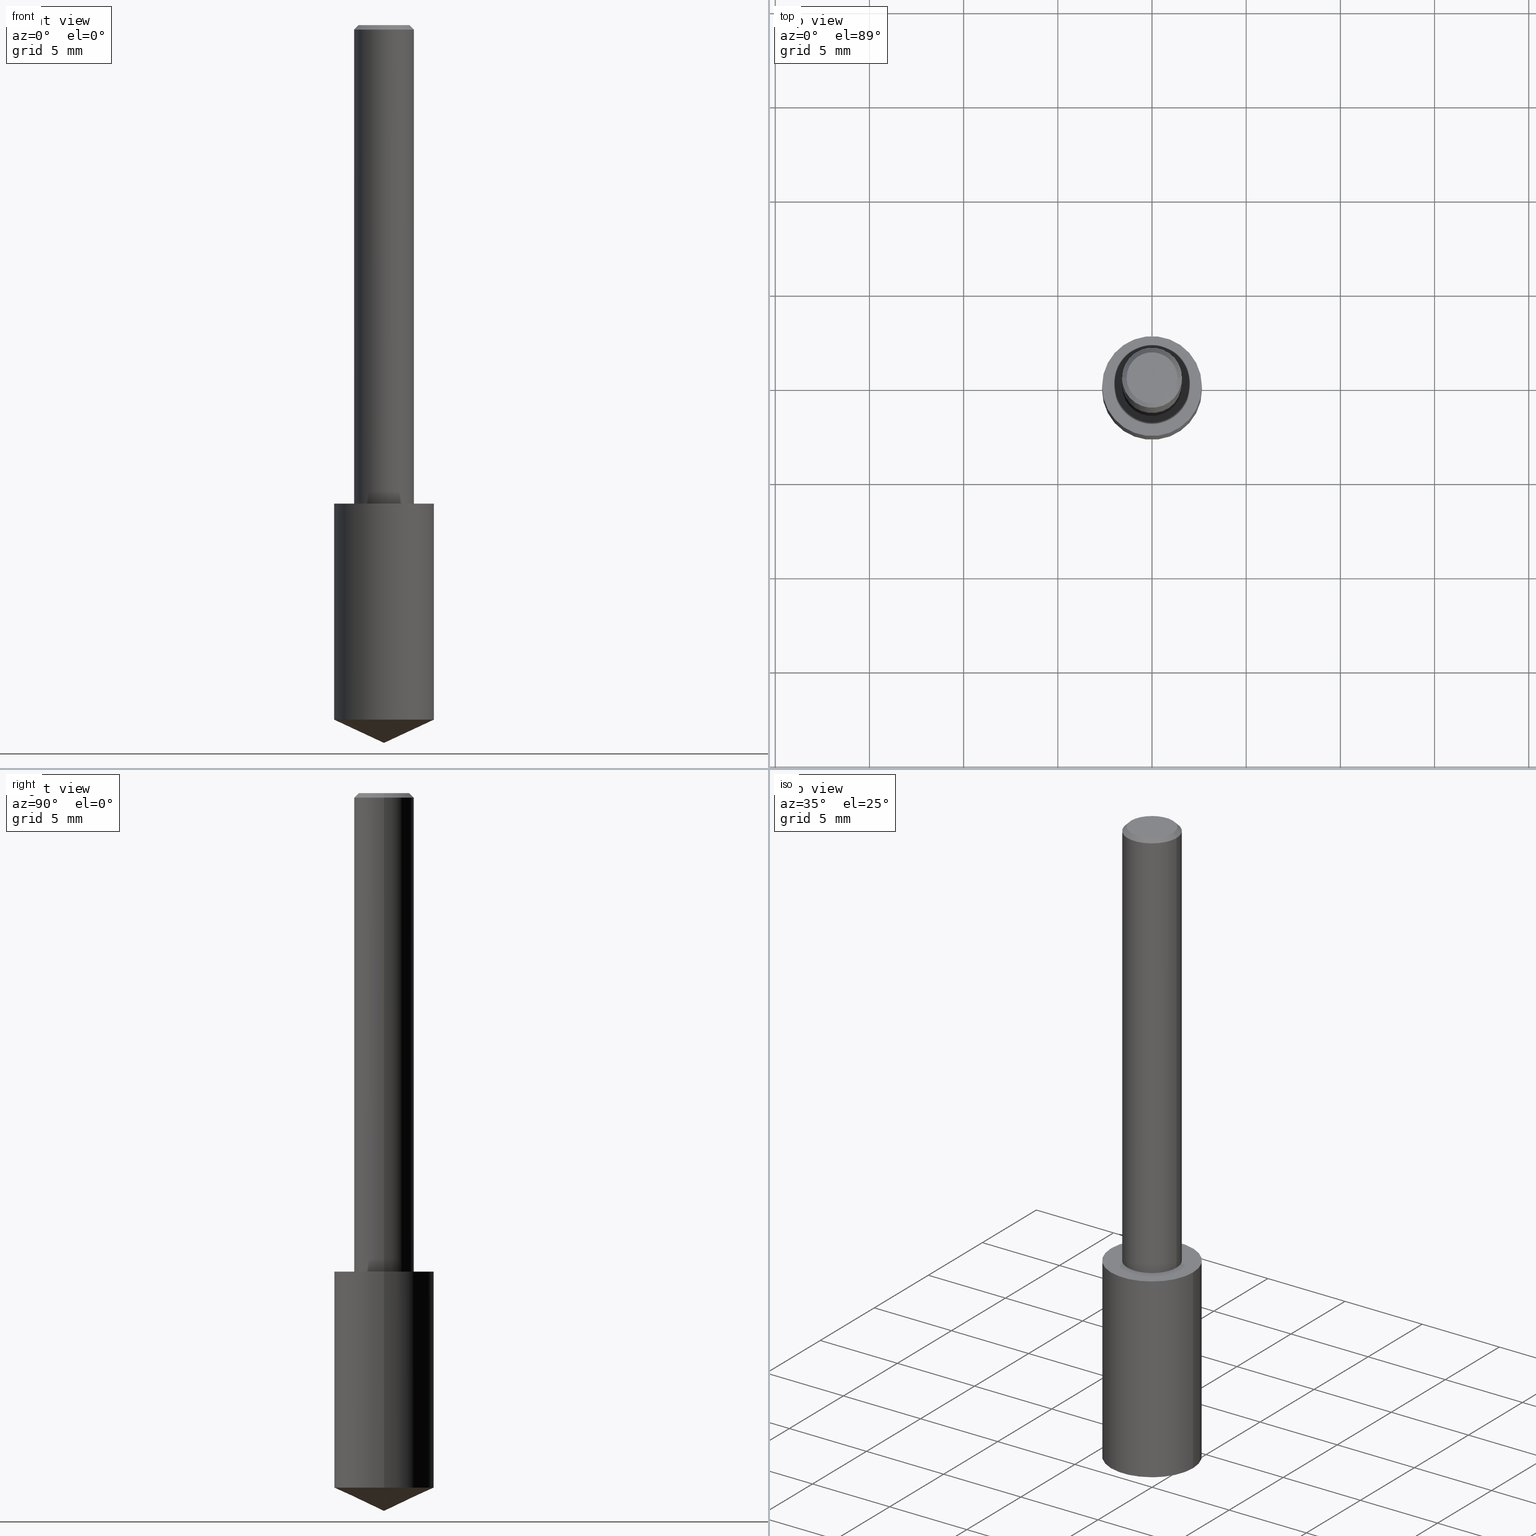
[diagram: canonical four-view strip — front | top / right | iso, engineering-drawing reading convention]
A machine part, canonical four-view strip (front | top / right | iso — engineering-drawing reading convention). The complete STEP part file that produces these views, byte-faithful:
ISO-10303-21;
HEADER;
FILE_DESCRIPTION (( 'STEP AP203' ),
    '1' );
FILE_NAME ('06142.STEP',
    '2024-04-30T18:31:00',
    ( '' ),
    ( '' ),
    'SwSTEP 2.0',
    'SolidWorks 2023',
    '' );
FILE_SCHEMA (( 'CONFIG_CONTROL_DESIGN' ));
ENDSEC;

DATA;
#1 = FACE_OUTER_BOUND ( 'NONE', #270, .T. ) ;
#2 = VECTOR ( 'NONE', #150, 39.37007874015748143 ) ;
#3 = EDGE_CURVE ( 'NONE', #208, #91, #68, .T. ) ;
#4 = DIRECTION ( 'NONE',  ( -2.445468806185136597E-29, 3.491481338843145583E-15, 1.000000000000000000 ) ) ;
#5 = APPROVAL_STATUS ( 'not_yet_approved' ) ;
#6 = FACE_OUTER_BOUND ( 'NONE', #146, .T. ) ;
#7 = DATE_AND_TIME ( #279, #269 ) ;
#8 = AXIS2_PLACEMENT_3D ( 'NONE', #215, #232, #30 ) ;
#9 = APPROVAL_STATUS ( 'not_yet_approved' ) ;
#10 = PLANE ( 'NONE',  #207 ) ;
#11 = ADVANCED_FACE ( 'NONE', ( #182 ), #265, .T. ) ;
#12 = VERTEX_POINT ( 'NONE', #180 ) ;
#13 = ORIENTED_EDGE ( 'NONE', *, *, #123, .T. ) ;
#14 = CC_DESIGN_DATE_AND_TIME_ASSIGNMENT ( #273, #329, ( #220 ) ) ;
#15 = EDGE_LOOP ( 'NONE', ( #48, #65, #324 ) ) ;
#16 = AXIS2_PLACEMENT_3D ( 'NONE', #54, #187, #290 ) ;
#17 = CARTESIAN_POINT ( 'NONE',  ( 3.549208643447727704E-29, -5.067329305087193163E-15, -1.451340795871526312 ) ) ;
#18 = APPROVAL_PERSON_ORGANIZATION ( #246, #297, #218 ) ;
#19 = DIRECTION ( 'NONE',  ( -2.445468806185136597E-29, 3.491481338843145583E-15, 1.000000000000000000 ) ) ;
#20 = DIRECTION ( 'NONE',  ( 1.000000000000000000, -6.982962677686266711E-15, 4.876176628004948512E-29 ) ) ;
#21 = PERSON_AND_ORGANIZATION ( #174, #107 ) ;
#22 = LINE ( 'NONE', #283, #242 ) ;
#23 = DATE_TIME_ROLE ( 'creation_date' ) ;
#24 = AXIS2_PLACEMENT_3D ( 'NONE', #172, #228, #335 ) ;
#25 = LINE ( 'NONE', #287, #155 ) ;
#26 = CC_DESIGN_PERSON_AND_ORGANIZATION_ASSIGNMENT ( #117, #252, ( #43 ) ) ;
#27 = DIMENSIONAL_EXPONENTS ( 1.000000000000000000, 0.000000000000000000, 0.000000000000000000, 0.000000000000000000, 0.000000000000000000, 0.000000000000000000, 0.000000000000000000 ) ;
#28 = VECTOR ( 'NONE', #203, 39.37007874015748143 ) ;
#29 = LINE ( 'NONE', #340, #94 ) ;
#30 = DIRECTION ( 'NONE',  ( 1.000000000000000000, -6.982962677686266711E-15, 4.876176628004948512E-29 ) ) ;
#31 = MANIFOLD_SOLID_BREP ( 'Body-Move/Copy2[2]', #171 ) ;
#32 = DIRECTION ( 'NONE',  ( 1.000000000000000000, -6.982962677686268288E-15, 0.000000000000000000 ) ) ;
#33 = APPROVAL_STATUS ( 'not_yet_approved' ) ;
#34 = COORDINATED_UNIVERSAL_TIME_OFFSET ( 5, 0, .BEHIND. ) ;
#35 = VERTEX_POINT ( 'NONE', #311 ) ;
#36 = CIRCLE ( 'NONE', #185, 0.06250000000000012490 ) ;
#37 = APPROVAL_PERSON_ORGANIZATION ( #21, #200, #284 ) ;
#38 = EDGE_LOOP ( 'NONE', ( #225, #97 ) ) ;
#39 = CARTESIAN_POINT ( 'NONE',  ( 3.359526907808025227E-29, -2.182498112362904859E-15, -1.000000000000000222 ) ) ;
#40 = EDGE_CURVE ( 'NONE', #66, #208, #22, .T. ) ;
#41 = ORIENTED_EDGE ( 'NONE', *, *, #67, .T. ) ;
#42 = VECTOR ( 'NONE', #307, 39.37007874015748854 ) ;
#43 = PRODUCT_DEFINITION ( 'UNKNOWN', '', #47, #243 ) ;
#44 = DIRECTION ( 'NONE',  ( -2.445468806185136597E-29, 3.491481338843145583E-15, 1.000000000000000000 ) ) ;
#45 = LINE ( 'NONE', #101, #42 ) ;
#46 = MECHANICAL_CONTEXT ( 'NONE', #75, 'mechanical' ) ;
#47 = PRODUCT_DEFINITION_FORMATION_WITH_SPECIFIED_SOURCE ( 'ANY', '', #74, .NOT_KNOWN. ) ;
#48 = ORIENTED_EDGE ( 'NONE', *, *, #50, .F. ) ;
#49 = COORDINATED_UNIVERSAL_TIME_OFFSET ( 5, 0, .BEHIND. ) ;
#50 = EDGE_CURVE ( 'NONE', #250, #333, #45, .T. ) ;
#51 = DIRECTION ( 'NONE',  ( 0.7071067811865452413, -7.319954787623248157E-15, -0.7071067811865497932 ) ) ;
#52 = DIRECTION ( 'NONE',  ( -1.000000000000000000, 6.982962677686265922E-15, -4.876176775795935793E-29 ) ) ;
#53 = DIRECTION ( 'NONE',  ( -2.445468806185136597E-29, 3.491481338843145583E-15, 1.000000000000000000 ) ) ;
#54 = CARTESIAN_POINT ( 'NONE',  ( -9.261009624683002666E-28, 1.322226732217803884E-13, 37.87007874015748143 ) ) ;
#55 = CARTESIAN_POINT ( 'NONE',  ( 2.445468806185136877E-29, -3.491481338843145977E-15, -1.000000000000000222 ) ) ;
#56 = DIRECTION ( 'NONE',  ( 1.000000000000000000, -6.982962677686264344E-15, 0.000000000000000000 ) ) ;
#57 = PERSON_AND_ORGANIZATION_ROLE ( 'design_supplier' ) ;
#58 = FACE_OUTER_BOUND ( 'NONE', #38, .T. ) ;
#59 = DIRECTION ( 'NONE',  ( 2.445468806185136597E-29, -3.491481338843145583E-15, -1.000000000000000000 ) ) ;
#60 = SECURITY_CLASSIFICATION_LEVEL ( 'unclassified' ) ;
#61 = ORIENTED_EDGE ( 'NONE', *, *, #314, .T. ) ;
#62 = AXIS2_PLACEMENT_3D ( 'NONE', #152, #205, #334 ) ;
#63 = ORIENTED_EDGE ( 'NONE', *, *, #93, .F. ) ;
#64 = EDGE_CURVE ( 'NONE', #333, #35, #258, .T. ) ;
#65 = ORIENTED_EDGE ( 'NONE', *, *, #158, .T. ) ;
#66 = VERTEX_POINT ( 'NONE', #105 ) ;
#67 = EDGE_CURVE ( 'NONE', #248, #91, #277, .T. ) ;
#68 = CIRCLE ( 'NONE', #62, 0.06250000000000000000 ) ;
#69 = CARTESIAN_POINT ( 'NONE',  ( 0.1043499999999999844, -4.220153494259708388E-15, -1.000000000000000222 ) ) ;
#70 = AXIS2_PLACEMENT_3D ( 'NONE', #39, #137, #52 ) ;
#71 = VERTEX_POINT ( 'NONE', #69 ) ;
#72 = CARTESIAN_POINT ( 'NONE',  ( -0.06250000000000006939, 4.440892098500631092E-16, -3.074334431409319267E-30 ) ) ;
#73 = FACE_OUTER_BOUND ( 'NONE', #199, .T. ) ;
#74 = PRODUCT ( '06142', '06142', '', ( #46 ) ) ;
#75 = APPLICATION_CONTEXT ( 'configuration controlled 3d designs of mechanical parts and assemblies' ) ;
#76 = CARTESIAN_POINT ( 'NONE',  ( -7.487088864773345706E-50, 1.068957861474247695E-35, 3.061616997868395197E-21 ) ) ;
#77 = CONICAL_SURFACE ( 'NONE', #16, 84.42940631927456252, 1.134464013796316895 ) ;
#78 = APPLICATION_PROTOCOL_DEFINITION ( 'international standard', 'config_control_design', 1994, #75 ) ;
#79 = FACE_OUTER_BOUND ( 'NONE', #194, .T. ) ;
#80 = PERSON_AND_ORGANIZATION ( #174, #107 ) ;
#81 = CC_DESIGN_PERSON_AND_ORGANIZATION_ASSIGNMENT ( #168, #138, ( #220 ) ) ;
#82 = CARTESIAN_POINT ( 'NONE',  ( 0.06250000000000000000, -4.691678049070464390E-16, -0.009375000000000063838 ) ) ;
#83 = AXIS2_PLACEMENT_3D ( 'NONE', #236, #53, #239 ) ;
#84 = LOCAL_TIME ( 14, 31, 0.000000000000000000, #49 ) ;
#85 = DIRECTION ( 'NONE',  ( -2.445468806185136597E-29, 3.491481338843145583E-15, 1.000000000000000000 ) ) ;
#86 = DIRECTION ( 'NONE',  ( -0.9063077870366510469, 7.915267918739014631E-15, 0.4226182617406970543 ) ) ;
#87 = CARTESIAN_POINT ( 'NONE',  ( 2.292627005798581499E-31, -3.273263755165471417E-17, -0.009375000000000063838 ) ) ;
#88 = DIRECTION ( 'NONE',  ( -2.445468806185136597E-29, 3.491481338843145583E-15, 1.000000000000000000 ) ) ;
#89 = DIRECTION ( 'NONE',  ( 0.000000000000000000, 0.000000000000000000, 1.000000000000000000 ) ) ;
#90 = APPLICATION_CONTEXT ( 'configuration controlled 3d designs of mechanical parts and assemblies' ) ;
#91 = VERTEX_POINT ( 'NONE', #125 ) ;
#92 = CALENDAR_DATE ( 2024, 30, 4 ) ;
#93 = EDGE_CURVE ( 'NONE', #124, #66, #288, .T. ) ;
#94 = VECTOR ( 'NONE', #135, 39.37007874015748143 ) ;
#95 = EDGE_LOOP ( 'NONE', ( #170, #142, #304, #198 ) ) ;
#96 = CALENDAR_DATE ( 2024, 30, 4 ) ;
#97 = ORIENTED_EDGE ( 'NONE', *, *, #133, .F. ) ;
#98 = EDGE_CURVE ( 'NONE', #35, #12, #102, .T. ) ;
#99 = ORIENTED_EDGE ( 'NONE', *, *, #231, .T. ) ;
#100 = DIRECTION ( 'NONE',  ( 2.438088387897960049E-29, -3.491481338843145188E-15, -1.000000000000000000 ) ) ;
#101 = CARTESIAN_POINT ( 'NONE',  ( 3.668203209277704895E-29, -5.237222008264718177E-15, -1.500000000000000222 ) ) ;
#102 = LINE ( 'NONE', #230, #28 ) ;
#103 = DIRECTION ( 'NONE',  ( 1.000000000000000000, -6.982962677686264344E-15, 0.000000000000000000 ) ) ;
#104 = EDGE_CURVE ( 'NONE', #222, #208, #337, .T. ) ;
#105 = CARTESIAN_POINT ( 'NONE',  ( 0.05312499999999999861, -4.129888592719939842E-16, 3.061617000609493422E-21 ) ) ;
#106 = AXIS2_PLACEMENT_3D ( 'NONE', #154, #256, #251 ) ;
#107 = ORGANIZATION ( 'UNSPECIFIED', 'UNSPECIFIED', '' ) ;
#108 = DIRECTION ( 'NONE',  ( -2.445468806185136597E-29, 3.491481338843145583E-15, 1.000000000000000000 ) ) ;
#109 = DIRECTION ( 'NONE',  ( 1.000000000000000000, -6.982962677686268288E-15, 0.000000000000000000 ) ) ;
#110 = CARTESIAN_POINT ( 'NONE',  ( -0.06250000000000000000, 4.037025298037369491E-16, -0.009375000000000063838 ) ) ;
#111 = VECTOR ( 'NONE', #305, 39.37007874015748143 ) ;
#112 = DIRECTION ( 'NONE',  ( 1.000000000000000000, -6.982962677686265922E-15, 4.876176775795935793E-29 ) ) ;
#113 = DIRECTION ( 'NONE',  ( -1.000000000000000000, 6.982962677686266711E-15, 0.000000000000000000 ) ) ;
#114 = ADVANCED_BREP_SHAPE_REPRESENTATION ( '06142', ( #261, #31, #275 ), #190 ) ;
#115 = DIRECTION ( 'NONE',  ( 1.000000000000000000, -6.982962677686266711E-15, 4.876176775795935793E-29 ) ) ;
#116 = ADVANCED_FACE ( 'NONE', ( #79 ), #141, .T. ) ;
#117 = PERSON_AND_ORGANIZATION ( #174, #107 ) ;
#118 = CIRCLE ( 'NONE', #300, 0.06250000000000012490 ) ;
#119 = ORIENTED_EDGE ( 'NONE', *, *, #126, .T. ) ;
#120 = DATE_AND_TIME ( #96, #238 ) ;
#121 = ORIENTED_EDGE ( 'NONE', *, *, #286, .T. ) ;
#122 = ORIENTED_EDGE ( 'NONE', *, *, #158, .F. ) ;
#123 = EDGE_CURVE ( 'NONE', #222, #248, #36, .T. ) ;
#124 = VERTEX_POINT ( 'NONE', #127 ) ;
#125 = CARTESIAN_POINT ( 'NONE',  ( -0.06250000000000000000, -1.318017778347336672E-15, -0.009375000000000063838 ) ) ;
#126 = EDGE_CURVE ( 'NONE', #12, #71, #226, .T. ) ;
#127 = CARTESIAN_POINT ( 'NONE',  ( -0.05312499999999999861, 3.873362110279099094E-16, 3.061616995216862494E-21 ) ) ;
#128 = COORDINATED_UNIVERSAL_TIME_OFFSET ( 5, 0, .BEHIND. ) ;
#129 = ORIENTED_EDGE ( 'NONE', *, *, #286, .F. ) ;
#130 = APPROVAL_DATE_TIME ( #255, #200 ) ;
#131 = DIRECTION ( 'NONE',  ( 1.000000000000000000, -6.982962677686267499E-15, 0.000000000000000000 ) ) ;
#132 = AXIS2_PLACEMENT_3D ( 'NONE', #285, #19, #131 ) ;
#133 = EDGE_CURVE ( 'NONE', #248, #222, #118, .T. ) ;
#134 = DIRECTION ( 'NONE',  ( 1.000000000000000000, -6.982962677686268288E-15, 0.000000000000000000 ) ) ;
#135 = DIRECTION ( 'NONE',  ( -2.445468806185136877E-29, 3.491481338843145188E-15, 1.000000000000000000 ) ) ;
#136 =( NAMED_UNIT ( * ) SI_UNIT ( $, .STERADIAN. ) SOLID_ANGLE_UNIT ( ) );
#137 = DIRECTION ( 'NONE',  ( 2.438088387897960049E-29, -3.491481338843145188E-15, -1.000000000000000000 ) ) ;
#138 = PERSON_AND_ORGANIZATION_ROLE ( 'classification_officer' ) ;
#139 = ORIENTED_EDGE ( 'NONE', *, *, #231, .F. ) ;
#140 = CC_DESIGN_PERSON_AND_ORGANIZATION_ASSIGNMENT ( #214, #189, ( #47 ) ) ;
#141 = CONICAL_SURFACE ( 'NONE', #106, 0.06250000000000000000, 0.7853981633974450594 ) ;
#142 = ORIENTED_EDGE ( 'NONE', *, *, #133, .T. ) ;
#143 = AXIS2_PLACEMENT_3D ( 'NONE', #17, #227, #310 ) ;
#144 = ORIENTED_EDGE ( 'NONE', *, *, #40, .T. ) ;
#145 = AXIS2_PLACEMENT_3D ( 'NONE', #87, #59, #113 ) ;
#146 = EDGE_LOOP ( 'NONE', ( #272, #147, #139, #221 ) ) ;
#147 = ORIENTED_EDGE ( 'NONE', *, *, #98, .T. ) ;
#148 = ADVANCED_FACE ( 'NONE', ( #58 ), #319, .F. ) ;
#149 = AXIS2_PLACEMENT_3D ( 'NONE', #262, #88, #32 ) ;
#150 = DIRECTION ( 'NONE',  ( -2.445468806185136877E-29, 3.491481338843145188E-15, 1.000000000000000000 ) ) ;
#151 = COORDINATED_UNIVERSAL_TIME_OFFSET ( 5, 0, .BEHIND. ) ;
#152 = CARTESIAN_POINT ( 'NONE',  ( 2.292627005798581499E-31, -3.273263755165471417E-17, -0.009375000000000063838 ) ) ;
#153 = CALENDAR_DATE ( 2024, 30, 4 ) ;
#154 = CARTESIAN_POINT ( 'NONE',  ( 2.292627005798581499E-31, -3.273263755165471417E-17, -0.009375000000000063838 ) ) ;
#155 = VECTOR ( 'NONE', #86, 39.37007874015748854 ) ;
#156 = CARTESIAN_POINT ( 'NONE',  ( 2.445468806185137438E-29, -3.491481338843146371E-15, -1.000000000000000222 ) ) ;
#157 = CARTESIAN_POINT ( 'NONE',  ( 3.668203209277704895E-29, -5.237222008264718177E-15, -1.500000000000000222 ) ) ;
#158 = EDGE_CURVE ( 'NONE', #250, #35, #25, .T. ) ;
#159 = DIRECTION ( 'NONE',  ( -2.438088387897960049E-29, 3.491481338843145188E-15, 1.000000000000000000 ) ) ;
#160 = FACE_OUTER_BOUND ( 'NONE', #164, .T. ) ;
#161 = AXIS2_PLACEMENT_3D ( 'NONE', #321, #4, #115 ) ;
#162 = CYLINDRICAL_SURFACE ( 'NONE', #161, 0.06250000000000006939 ) ;
#163 = EDGE_CURVE ( 'NONE', #91, #208, #237, .T. ) ;
#164 = EDGE_LOOP ( 'NONE', ( #267, #63, #169, #299 ) ) ;
#165 = SHAPE_DEFINITION_REPRESENTATION ( #224, #114 ) ;
#166 = CIRCLE ( 'NONE', #143, 0.1043499999999999844 ) ;
#167 = LOCAL_TIME ( 14, 31, 0.000000000000000000, #301 ) ;
#168 = PERSON_AND_ORGANIZATION ( #174, #107 ) ;
#169 = ORIENTED_EDGE ( 'NONE', *, *, #241, .T. ) ;
#170 = ORIENTED_EDGE ( 'NONE', *, *, #67, .F. ) ;
#171 = CLOSED_SHELL ( 'NONE', ( #116, #176, #148, #191, #303, #253 ) ) ;
#172 = CARTESIAN_POINT ( 'NONE',  ( 2.445468806185136877E-29, -3.491481338843145977E-15, -1.000000000000000222 ) ) ;
#173 = CC_DESIGN_APPROVAL ( #280, ( #43 ) ) ;
#174 = PERSON ( 'UNSPECIFIED', 'UNSPECIFIED', 'UNSPECIFIED', ('UNSPECIFIED'), ('UNSPECIFIED'), ('UNSPECIFIED') ) ;
#175 = CARTESIAN_POINT ( 'NONE',  ( 3.549208643447727704E-29, -5.067329305087193163E-15, -1.451340795871526312 ) ) ;
#176 = ADVANCED_FACE ( 'NONE', ( #291 ), #162, .T. ) ;
#177 = DIRECTION ( 'NONE',  ( -2.445468806185136597E-29, 3.491481338843145583E-15, 1.000000000000000000 ) ) ;
#178 = APPLICATION_PROTOCOL_DEFINITION ( 'international standard', 'config_control_design', 1994, #90 ) ;
#179 = AXIS2_PLACEMENT_3D ( 'NONE', #175, #44, #254 ) ;
#180 = CARTESIAN_POINT ( 'NONE',  ( -0.1043499999999999844, -3.537953977199505038E-15, -1.000000000000000222 ) ) ;
#181 = DATE_AND_TIME ( #257, #186 ) ;
#182 = FACE_OUTER_BOUND ( 'NONE', #193, .T. ) ;
#183 =( LENGTH_UNIT ( ) NAMED_UNIT ( * ) SI_UNIT ( $, .METRE. ) );
#184 = CARTESIAN_POINT ( 'NONE',  ( 2.445468806185137438E-29, -3.491481338843146371E-15, -1.000000000000000222 ) ) ;
#185 = AXIS2_PLACEMENT_3D ( 'NONE', #308, #177, #103 ) ;
#186 = LOCAL_TIME ( 14, 31, 0.000000000000000000, #128 ) ;
#187 = DIRECTION ( 'NONE',  ( -2.445468806185136597E-29, 3.491481338843145583E-15, 1.000000000000000000 ) ) ;
#188 = CYLINDRICAL_SURFACE ( 'NONE', #149, 0.1043499999999999844 ) ;
#189 = PERSON_AND_ORGANIZATION_ROLE ( 'creator' ) ;
#190 =( GEOMETRIC_REPRESENTATION_CONTEXT ( 3 ) GLOBAL_UNCERTAINTY_ASSIGNED_CONTEXT ( ( #296 ) ) GLOBAL_UNIT_ASSIGNED_CONTEXT ( ( #240, #313, #136 ) ) REPRESENTATION_CONTEXT ( 'NONE', 'WORKASPACE' ) );
#191 = ADVANCED_FACE ( 'NONE', ( #263 ), #266, .T. ) ;
#192 = ORIENTED_EDGE ( 'NONE', *, *, #241, .F. ) ;
#193 = EDGE_LOOP ( 'NONE', ( #122, #302, #129 ) ) ;
#194 = EDGE_LOOP ( 'NONE', ( #330, #144, #216, #192 ) ) ;
#195 = CIRCLE ( 'NONE', #8, 0.05312499999999999861 ) ;
#196 = EDGE_LOOP ( 'NONE', ( #325, #61 ) ) ;
#197 = ADVANCED_FACE ( 'NONE', ( #1 ), #188, .T. ) ;
#198 = ORIENTED_EDGE ( 'NONE', *, *, #163, .F. ) ;
#199 = EDGE_LOOP ( 'NONE', ( #99, #119 ) ) ;
#200 = APPROVAL ( #5, 'UNSPECIFIED' ) ;
#201 = DIRECTION ( 'NONE',  ( -1.000000000000000000, 6.982962677686265922E-15, -4.876176775795935793E-29 ) ) ;
#202 = FACE_OUTER_BOUND ( 'NONE', #196, .T. ) ;
#203 = DIRECTION ( 'NONE',  ( -2.445468806185136877E-29, 3.491481338843145188E-15, 1.000000000000000000 ) ) ;
#204 = CARTESIAN_POINT ( 'NONE',  ( -3.743544432386672853E-50, 5.344789307371238476E-36, 1.530808498934197599E-21 ) ) ;
#205 = DIRECTION ( 'NONE',  ( -2.445468806185136597E-29, 3.491481338843145583E-15, 1.000000000000000000 ) ) ;
#206 = PERSON_AND_ORGANIZATION ( #174, #107 ) ;
#207 = AXIS2_PLACEMENT_3D ( 'NONE', #204, #100, #201 ) ;
#208 = VERTEX_POINT ( 'NONE', #82 ) ;
#209 = DIRECTION ( 'NONE',  ( 1.000000000000000000, 0.000000000000000000, 0.000000000000000000 ) ) ;
#210 = LINE ( 'NONE', #110, #219 ) ;
#211 = ADVANCED_FACE ( 'NONE', ( #6 ), #233, .T. ) ;
#212 = CARTESIAN_POINT ( 'NONE',  ( -0.06250000000000012490, -1.318017778347335489E-15, -1.000000000000000222 ) ) ;
#213 = DIRECTION ( 'NONE',  ( 1.000000000000000000, -6.982962677686266711E-15, 4.876176775795935793E-29 ) ) ;
#214 = PERSON_AND_ORGANIZATION ( #174, #107 ) ;
#215 = CARTESIAN_POINT ( 'NONE',  ( -7.487088864773345706E-50, 1.068957861474247695E-35, 3.061616997868395197E-21 ) ) ;
#216 = ORIENTED_EDGE ( 'NONE', *, *, #3, .T. ) ;
#217 = ORIENTED_EDGE ( 'NONE', *, *, #104, .F. ) ;
#218 = APPROVAL_ROLE ( '' ) ;
#219 = VECTOR ( 'NONE', #315, 39.37007874015748143 ) ;
#220 = SECURITY_CLASSIFICATION ( '', '', #60 ) ;
#221 = ORIENTED_EDGE ( 'NONE', *, *, #223, .F. ) ;
#222 = VERTEX_POINT ( 'NONE', #234 ) ;
#223 = EDGE_CURVE ( 'NONE', #333, #71, #29, .T. ) ;
#224 = PRODUCT_DEFINITION_SHAPE ( 'NONE', 'NONE',  #43 ) ;
#225 = ORIENTED_EDGE ( 'NONE', *, *, #123, .F. ) ;
#226 = CIRCLE ( 'NONE', #24, 0.1043499999999999844 ) ;
#227 = DIRECTION ( 'NONE',  ( -2.445468806185136597E-29, 3.491481338843145583E-15, 1.000000000000000000 ) ) ;
#228 = DIRECTION ( 'NONE',  ( -2.445468806185136597E-29, 3.491481338843145583E-15, 1.000000000000000000 ) ) ;
#229 = CARTESIAN_POINT ( 'NONE',  ( 0.1043499999999999706, -5.796001460503755574E-15, -1.451340795871526312 ) ) ;
#230 = CARTESIAN_POINT ( 'NONE',  ( -0.1043499999999999844, -2.750029994077481840E-15, -1.000000000000000222 ) ) ;
#231 = EDGE_CURVE ( 'NONE', #71, #12, #281, .T. ) ;
#232 = DIRECTION ( 'NONE',  ( -2.445468806185136597E-29, 3.491481338843145583E-15, 1.000000000000000000 ) ) ;
#233 = CYLINDRICAL_SURFACE ( 'NONE', #295, 0.1043499999999999844 ) ;
#234 = CARTESIAN_POINT ( 'NONE',  ( 0.06250000000000012490, -3.927916506198539224E-15, -1.000000000000000222 ) ) ;
#235 = DIRECTION ( 'NONE',  ( -2.445468806185136597E-29, 3.491481338843145583E-15, 1.000000000000000000 ) ) ;
#236 = CARTESIAN_POINT ( 'NONE',  ( 2.292627005798581499E-31, -3.273263755165471417E-17, -0.009375000000000063838 ) ) ;
#237 = CIRCLE ( 'NONE', #83, 0.06250000000000000000 ) ;
#238 = LOCAL_TIME ( 14, 31, 0.000000000000000000, #34 ) ;
#239 = DIRECTION ( 'NONE',  ( 1.000000000000000000, -6.982962677686266711E-15, 0.000000000000000000 ) ) ;
#240 =( CONVERSION_BASED_UNIT ( 'INCH', #264 ) LENGTH_UNIT ( ) NAMED_UNIT ( #27 ) );
#241 = EDGE_CURVE ( 'NONE', #124, #91, #210, .T. ) ;
#242 = VECTOR ( 'NONE', #51, 39.37007874015748143 ) ;
#243 = DESIGN_CONTEXT ( 'detailed design', #90, 'design' ) ;
#244 = APPROVAL_PERSON_ORGANIZATION ( #80, #280, #336 ) ;
#245 = PRODUCT_RELATED_PRODUCT_CATEGORY ( 'detail', '', ( #74 ) ) ;
#246 = PERSON_AND_ORGANIZATION ( #174, #107 ) ;
#247 = CLOSED_SHELL ( 'NONE', ( #211, #249, #11, #197, #293 ) ) ;
#248 = VERTEX_POINT ( 'NONE', #212 ) ;
#249 = ADVANCED_FACE ( 'NONE', ( #289 ), #77, .T. ) ;
#250 = VERTEX_POINT ( 'NONE', #157 ) ;
#251 = DIRECTION ( 'NONE',  ( -1.000000000000000000, 6.982962677686266711E-15, 0.000000000000000000 ) ) ;
#252 = PERSON_AND_ORGANIZATION_ROLE ( 'creator' ) ;
#253 = ADVANCED_FACE ( 'NONE', ( #202 ), #10, .F. ) ;
#254 = DIRECTION ( 'NONE',  ( 1.000000000000000000, -6.982962677686263555E-15, 0.000000000000000000 ) ) ;
#255 = DATE_AND_TIME ( #153, #84 ) ;
#256 = DIRECTION ( 'NONE',  ( 2.445468806185136597E-29, -3.491481338843145583E-15, -1.000000000000000000 ) ) ;
#257 = CALENDAR_DATE ( 2024, 30, 4 ) ;
#258 = CIRCLE ( 'NONE', #179, 0.1043499999999999844 ) ;
#259 = DIRECTION ( 'NONE',  ( -2.445468806185136597E-29, 3.491481338843145583E-15, 1.000000000000000000 ) ) ;
#260 = CC_DESIGN_PERSON_AND_ORGANIZATION_ASSIGNMENT ( #206, #294, ( #74 ) ) ;
#261 = MANIFOLD_SOLID_BREP ( 'Body-Move/Copy2[1]', #247 ) ;
#262 = CARTESIAN_POINT ( 'NONE',  ( 2.445468806185137438E-29, -3.491481338843146371E-15, -1.000000000000000222 ) ) ;
#263 = FACE_OUTER_BOUND ( 'NONE', #95, .T. ) ;
#264 = LENGTH_MEASURE_WITH_UNIT ( LENGTH_MEASURE( 0.02539999999999999897 ), #183 );
#265 = CONICAL_SURFACE ( 'NONE', #132, 84.42940631927456252, 1.134464013796316895 ) ;
#266 = CYLINDRICAL_SURFACE ( 'NONE', #268, 0.06250000000000006939 ) ;
#267 = ORIENTED_EDGE ( 'NONE', *, *, #40, .F. ) ;
#268 = AXIS2_PLACEMENT_3D ( 'NONE', #317, #235, #213 ) ;
#269 = LOCAL_TIME ( 14, 31, 0.000000000000000000, #151 ) ;
#270 = EDGE_LOOP ( 'NONE', ( #327, #121, #278, #274 ) ) ;
#271 = PLANE ( 'NONE',  #70 ) ;
#272 = ORIENTED_EDGE ( 'NONE', *, *, #64, .T. ) ;
#273 = DATE_AND_TIME ( #92, #167 ) ;
#274 = ORIENTED_EDGE ( 'NONE', *, *, #126, .F. ) ;
#275 = AXIS2_PLACEMENT_3D ( 'NONE', #322, #89, #209 ) ;
#276 = DIRECTION ( 'NONE',  ( -2.445468806185136597E-29, 3.491481338843145583E-15, 1.000000000000000000 ) ) ;
#277 = LINE ( 'NONE', #72, #111 ) ;
#278 = ORIENTED_EDGE ( 'NONE', *, *, #223, .T. ) ;
#279 = CALENDAR_DATE ( 2024, 30, 4 ) ;
#280 = APPROVAL ( #33, 'UNSPECIFIED' ) ;
#281 = CIRCLE ( 'NONE', #316, 0.1043499999999999844 ) ;
#282 = CC_DESIGN_APPROVAL ( #297, ( #220 ) ) ;
#283 = CARTESIAN_POINT ( 'NONE',  ( 0.06250000000000000000, -4.615137624123754923E-16, -0.009375000000000063838 ) ) ;
#284 = APPROVAL_ROLE ( '' ) ;
#285 = CARTESIAN_POINT ( 'NONE',  ( -9.261009624683002666E-28, 1.322226732217803884E-13, 37.87007874015748143 ) ) ;
#286 = EDGE_CURVE ( 'NONE', #35, #333, #166, .T. ) ;
#287 = CARTESIAN_POINT ( 'NONE',  ( 3.668203209277704895E-29, -5.237222008264718177E-15, -1.500000000000000222 ) ) ;
#288 = CIRCLE ( 'NONE', #328, 0.05312499999999999861 ) ;
#289 = FACE_OUTER_BOUND ( 'NONE', #15, .T. ) ;
#290 = DIRECTION ( 'NONE',  ( 1.000000000000000000, -6.982962677686267499E-15, 0.000000000000000000 ) ) ;
#291 = FACE_OUTER_BOUND ( 'NONE', #332, .T. ) ;
#292 = PERSON_AND_ORGANIZATION ( #174, #107 ) ;
#293 = ADVANCED_FACE ( 'NONE', ( #73 ), #271, .F. ) ;
#294 = PERSON_AND_ORGANIZATION_ROLE ( 'design_owner' ) ;
#295 = AXIS2_PLACEMENT_3D ( 'NONE', #339, #259, #134 ) ;
#296 = UNCERTAINTY_MEASURE_WITH_UNIT (LENGTH_MEASURE( 1.000000000000000082E-05 ), #240, 'distance_accuracy_value', 'NONE');
#297 = APPROVAL ( #9, 'UNSPECIFIED' ) ;
#298 = ORIENTED_EDGE ( 'NONE', *, *, #3, .F. ) ;
#299 = ORIENTED_EDGE ( 'NONE', *, *, #163, .T. ) ;
#300 = AXIS2_PLACEMENT_3D ( 'NONE', #156, #108, #56 ) ;
#301 = COORDINATED_UNIVERSAL_TIME_OFFSET ( 5, 0, .BEHIND. ) ;
#302 = ORIENTED_EDGE ( 'NONE', *, *, #50, .T. ) ;
#303 = ADVANCED_FACE ( 'NONE', ( #160 ), #338, .T. ) ;
#304 = ORIENTED_EDGE ( 'NONE', *, *, #104, .T. ) ;
#305 = DIRECTION ( 'NONE',  ( -2.445468806185136877E-29, 3.491481338843145188E-15, 1.000000000000000000 ) ) ;
#306 = AXIS2_PLACEMENT_3D ( 'NONE', #184, #159, #112 ) ;
#307 = DIRECTION ( 'NONE',  ( 0.9063077870366510469, -4.853149677051396145E-15, 0.4226182617406970543 ) ) ;
#308 = CARTESIAN_POINT ( 'NONE',  ( 2.445468806185137438E-29, -3.491481338843146371E-15, -1.000000000000000222 ) ) ;
#309 = CC_DESIGN_PERSON_AND_ORGANIZATION_ASSIGNMENT ( #292, #57, ( #47 ) ) ;
#310 = DIRECTION ( 'NONE',  ( 1.000000000000000000, -6.982962677686263555E-15, 0.000000000000000000 ) ) ;
#311 = CARTESIAN_POINT ( 'NONE',  ( -0.1043499999999999706, -4.325877960321529026E-15, -1.451340795871526312 ) ) ;
#312 = CARTESIAN_POINT ( 'NONE',  ( 0.06250000000000006939, -4.364351673553921624E-16, 3.047610484872463374E-30 ) ) ;
#313 =( NAMED_UNIT ( * ) PLANE_ANGLE_UNIT ( ) SI_UNIT ( $, .RADIAN. ) );
#314 = EDGE_CURVE ( 'NONE', #66, #124, #195, .T. ) ;
#315 = DIRECTION ( 'NONE',  ( -0.7071067811865452413, 2.468850131082233000E-15, -0.7071067811865497932 ) ) ;
#316 = AXIS2_PLACEMENT_3D ( 'NONE', #55, #85, #109 ) ;
#317 = CARTESIAN_POINT ( 'NONE',  ( 0.000000000000000000, 0.000000000000000000, 0.000000000000000000 ) ) ;
#318 = CC_DESIGN_APPROVAL ( #200, ( #47 ) ) ;
#319 = PLANE ( 'NONE',  #306 ) ;
#320 = APPROVAL_DATE_TIME ( #7, #280 ) ;
#321 = CARTESIAN_POINT ( 'NONE',  ( 0.000000000000000000, 0.000000000000000000, 0.000000000000000000 ) ) ;
#322 = CARTESIAN_POINT ( 'NONE',  ( 0.000000000000000000, 0.000000000000000000, 0.000000000000000000 ) ) ;
#323 = CC_DESIGN_DATE_AND_TIME_ASSIGNMENT ( #181, #23, ( #43 ) ) ;
#324 = ORIENTED_EDGE ( 'NONE', *, *, #64, .F. ) ;
#325 = ORIENTED_EDGE ( 'NONE', *, *, #93, .T. ) ;
#326 = APPROVAL_DATE_TIME ( #120, #297 ) ;
#327 = ORIENTED_EDGE ( 'NONE', *, *, #98, .F. ) ;
#328 = AXIS2_PLACEMENT_3D ( 'NONE', #76, #276, #20 ) ;
#329 = DATE_TIME_ROLE ( 'classification_date' ) ;
#330 = ORIENTED_EDGE ( 'NONE', *, *, #314, .F. ) ;
#331 = CC_DESIGN_SECURITY_CLASSIFICATION ( #220, ( #47 ) ) ;
#332 = EDGE_LOOP ( 'NONE', ( #13, #41, #298, #217 ) ) ;
#333 = VERTEX_POINT ( 'NONE', #229 ) ;
#334 = DIRECTION ( 'NONE',  ( 1.000000000000000000, -6.982962677686266711E-15, 0.000000000000000000 ) ) ;
#335 = DIRECTION ( 'NONE',  ( 1.000000000000000000, -6.982962677686268288E-15, 0.000000000000000000 ) ) ;
#336 = APPROVAL_ROLE ( '' ) ;
#337 = LINE ( 'NONE', #312, #2 ) ;
#338 = CONICAL_SURFACE ( 'NONE', #145, 0.06250000000000000000, 0.7853981633974450594 ) ;
#339 = CARTESIAN_POINT ( 'NONE',  ( 2.445468806185137438E-29, -3.491481338843146371E-15, -1.000000000000000222 ) ) ;
#340 = CARTESIAN_POINT ( 'NONE',  ( 0.1043499999999999844, -4.220153494259708388E-15, -1.000000000000000222 ) ) ;
ENDSEC;
END-ISO-10303-21;
